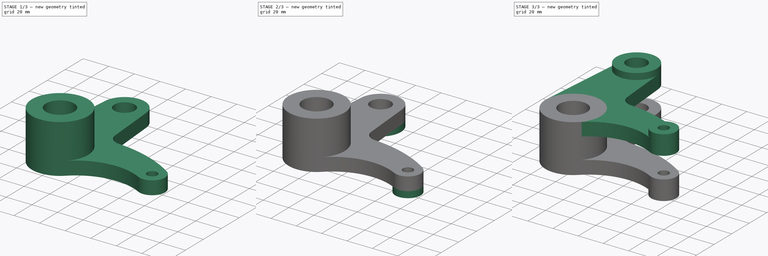
[diagram: build sequence overview — one tinted view per stage of 3, left to right]
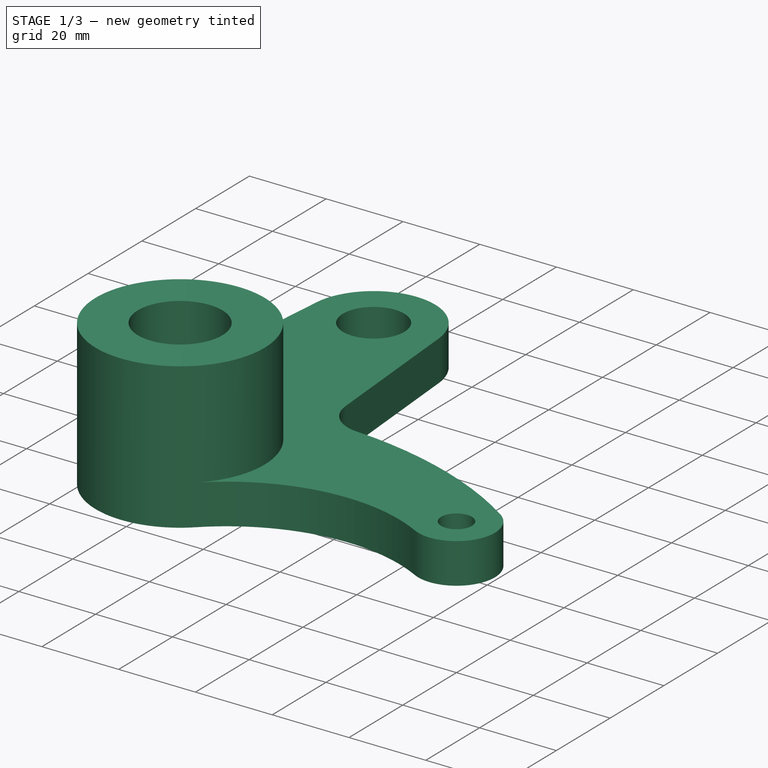
[diagram: stage 1 of 3 — iso view after this stage's code; geometry added in this stage tinted green]
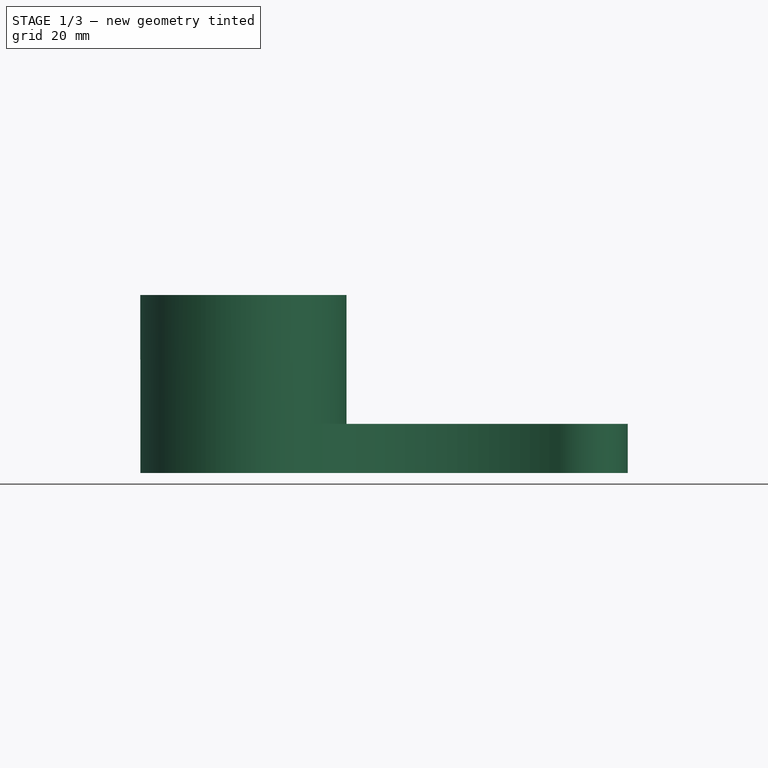
[diagram: stage 1 of 3 — front view after this stage's code; geometry added in this stage tinted green]
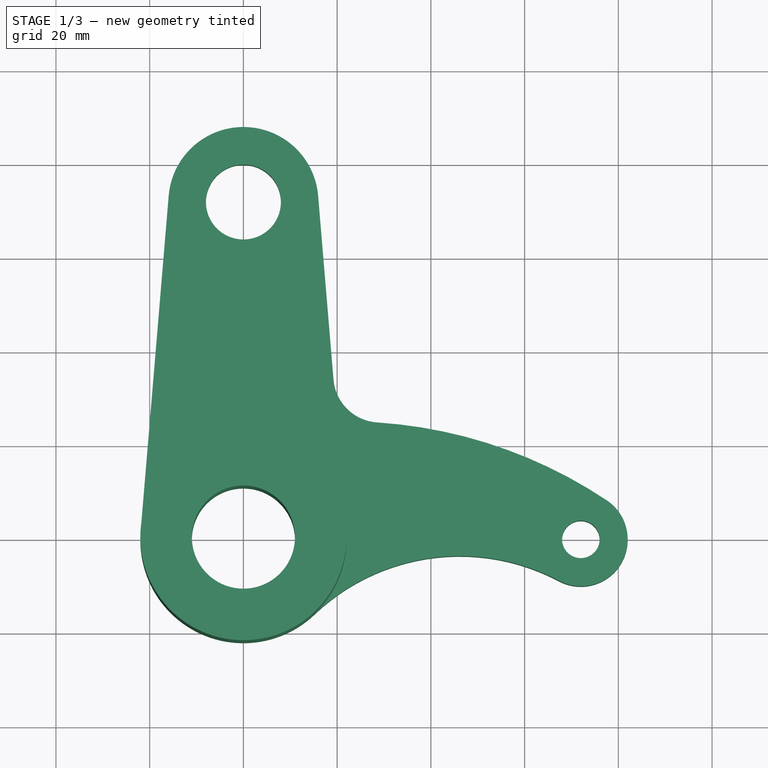
[diagram: stage 1 of 3 — top view after this stage's code; geometry added in this stage tinted green]
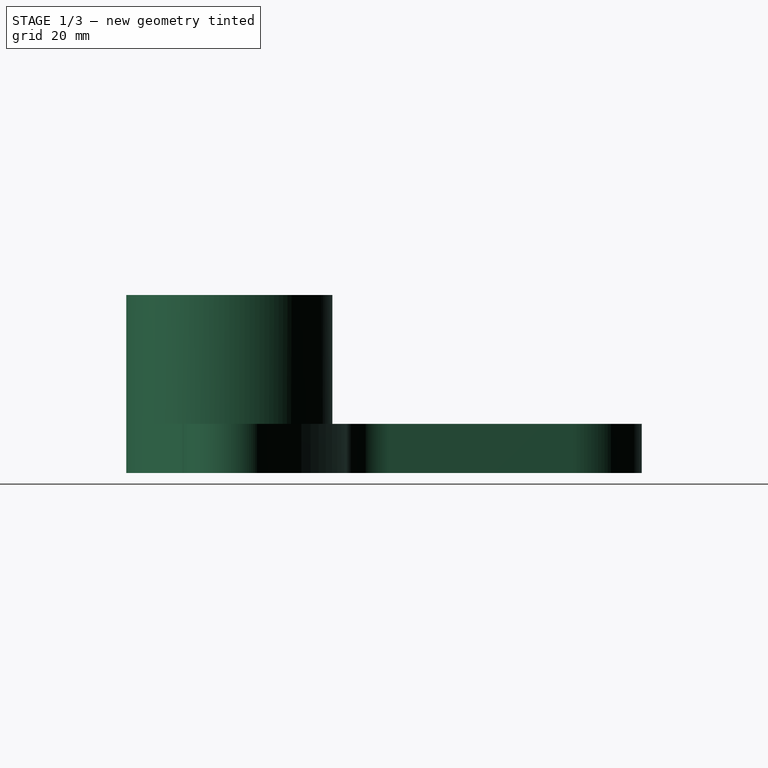
[diagram: stage 1 of 3 — right view after this stage's code; geometry added in this stage tinted green]
FCSTD DOCUMENT  (FreeCAD 0.18R4 (GitTag))
Label: pr2
License: All rights reserved
LicenseURL: http://en.wikipedia.org/wiki/All_rights_reserved
objects: Sketcher::SketchObject×3, PartDesign::Pad×3, PartDesign::LinearPattern×2, PartDesign::Body×1
note: 12 computed .brp shape members not serialized (recipe doc carries the construction recipe); baked Part::Feature solids carry a one-line shape summary decoded from their .brp

FEATURE [Sketcher::SketchObject] Sketch
  MapMode = 5
  Support = -> [XY_Plane]
  sketch-geometry (11):
    g0: Circle CenterX=0 CenterY=0 CenterZ=0 NormalX=0 NormalY=0 NormalZ=1 AngleXU=0 Radius=11
    g1: Circle CenterX=72 CenterY=0 CenterZ=0 NormalX=0 NormalY=0 NormalZ=1 AngleXU=0 Radius=4
    g2: Circle CenterX=0 CenterY=72 CenterZ=0 NormalX=0 NormalY=0 NormalZ=1 AngleXU=0 Radius=8
    g3: ArcOfCircle CenterX=0 CenterY=0 CenterZ=0 NormalX=0 NormalY=0 NormalZ=1 AngleXU=0 Radius=22 StartAngle=3.05816 EndAngle=5.47257
    g4: ArcOfCircle CenterX=0 CenterY=72 CenterZ=0 NormalX=0 NormalY=0 NormalZ=1 AngleXU=0 Radius=16 StartAngle=0.0834124 EndAngle=3.05816
    g5: ArcOfCircle CenterX=46.1667 CenterY=-48.5555 CenterZ=0 NormalX=0 NormalY=0 NormalZ=1 AngleXU=0 Radius=45 StartAngle=1.08185 EndAngle=2.33098
    g6: LineSegment StartX=-15.9443 StartY=73.3333 StartZ=0 EndX=-21.9235 EndY=1.83333 EndZ=0
    g7: LineSegment StartX=15.9444 StartY=73.3331 StartZ=0 EndX=19.2248 EndY=34.0968 EndZ=0
    g8: ArcOfCircle CenterX=72 CenterY=0 CenterZ=0 NormalX=0 NormalY=0 NormalZ=1 AngleXU=0 Radius=10 StartAngle=4.22344 EndAngle=7.26499
    g9: ArcOfCircle CenterX=29.19 CenterY=34.93 CenterZ=0 NormalX=0 NormalY=0 NormalZ=1 AngleXU=0 Radius=10 StartAngle=3.22501 EndAngle=4.647
    g10: ArcOfCircle CenterX=22.0027 CenterY=-74.8349 CenterZ=0 NormalX=0 NormalY=0 NormalZ=1 AngleXU=0 Radius=100 StartAngle=0.981802 EndAngle=1.50541
  constraints (35):
    c: Radius(g0) = 11
    c: Radius(g1) = 4
    c: Radius(g2) = 8
    c: Coincident(g0,g-1)
    c: DistanceY(g0,g2) = 72
    c: DistanceY(g0,g1) = 0
    c: DistanceX(g0,g1) = 72
    c: DistanceX(g0,g2) = 0
    c: Coincident(g4,g2)
    c: Coincident(g3,g0)
    c: Radius(g3) = 22
    c: Radius(g4) = 16
    c: Coincident(g6,g4)
    c: Coincident(g6,g3)
    c: Tangent(g4,g6)
    c: Tangent(g3,g6)
    c: Coincident(g7,g4)
    c: Coincident(g5,g3)
    c: Tangent(g5,g3)
    c: Tangent(g4,g7)
    c: Coincident(g8,g1)
    c: Coincident(g8,g5)
    c: Tangent(g8,g5)
    c: Coincident(g9,g7)
    c: Tangent(g7,g9)
    c: Radius(g5) = 45
    c: Radius(g8) = 10
    c: Coincident(g8,g10)
    c: Coincident(g10,g9)
    c: Tangent(g8,g10)
    c: Tangent(g10,g9)
    c: Radius(g10) = 100
    c: Radius(g9) = 10
    c: DistanceX(g0,g9) = 29.19
    c: DistanceY(g0,g9) = 34.93
FEATURE [PartDesign::Pad] Pad
  Length = 10.5
  Length2 = 100
  Profile = -> Sketch
  Type = 0
FEATURE [Sketcher::SketchObject] Sketch001
  MapMode = 5
  Placement = pos=(0,0,10.5) rot=(0,0,1;0rad)
  Support = -> [Pad]
  sketch-geometry (2):
    g0: Circle CenterX=0 CenterY=0 CenterZ=0 NormalX=0 NormalY=0 NormalZ=1 AngleXU=0 Radius=22
    g1: Circle CenterX=0 CenterY=0 CenterZ=0 NormalX=0 NormalY=0 NormalZ=1 AngleXU=0 Radius=11
  constraints (4):
    c: Coincident(g0,g-1)
    c: Coincident(g1,g0)
    c: Radius(g1) = 11
    c: Radius(g0) = 22
FEATURE [PartDesign::Pad] Pad001
  BaseFeature = -> Pad
  Length = 27.5
  Length2 = 100
  Offset = 1
  Profile = -> Sketch001
  Type = 0
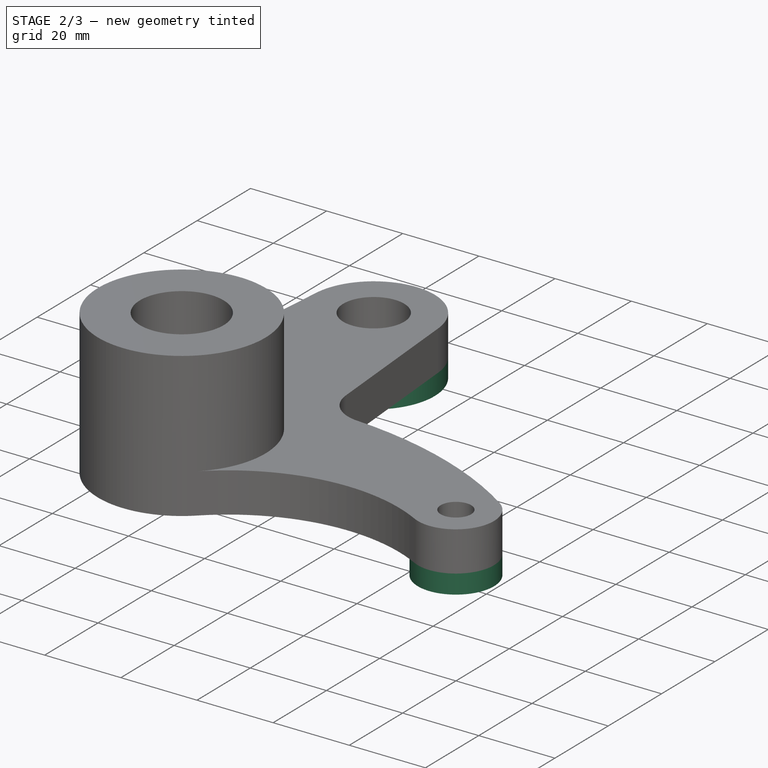
[diagram: stage 2 of 3 — iso view after this stage's code; geometry added in this stage tinted green]
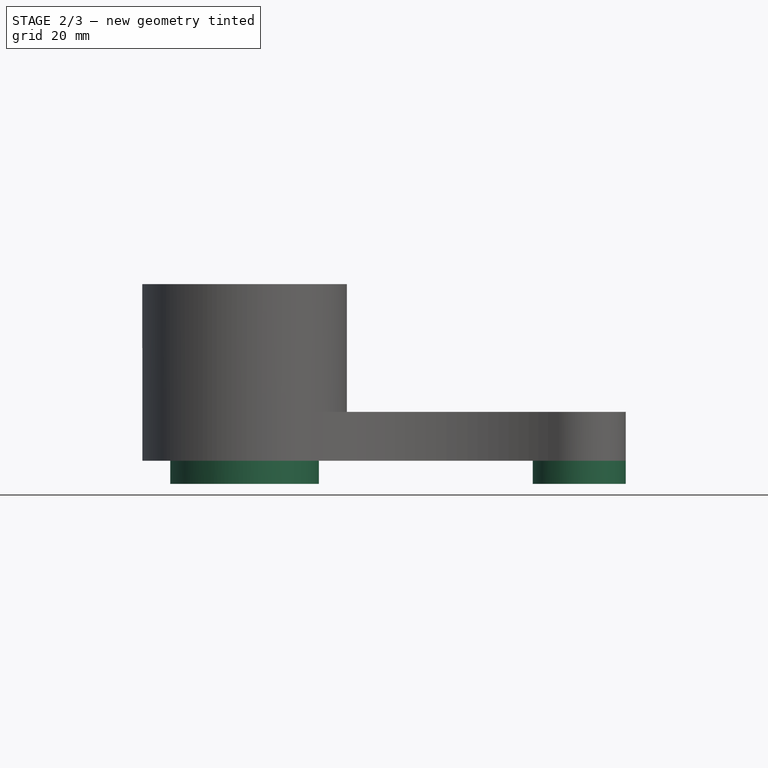
[diagram: stage 2 of 3 — front view after this stage's code; geometry added in this stage tinted green]
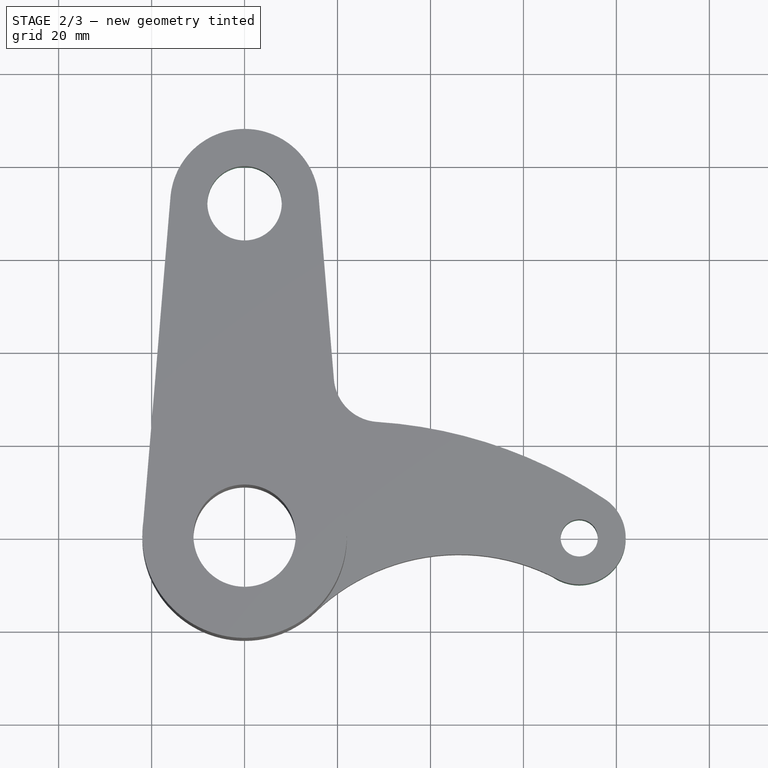
[diagram: stage 2 of 3 — top view after this stage's code; geometry added in this stage tinted green]
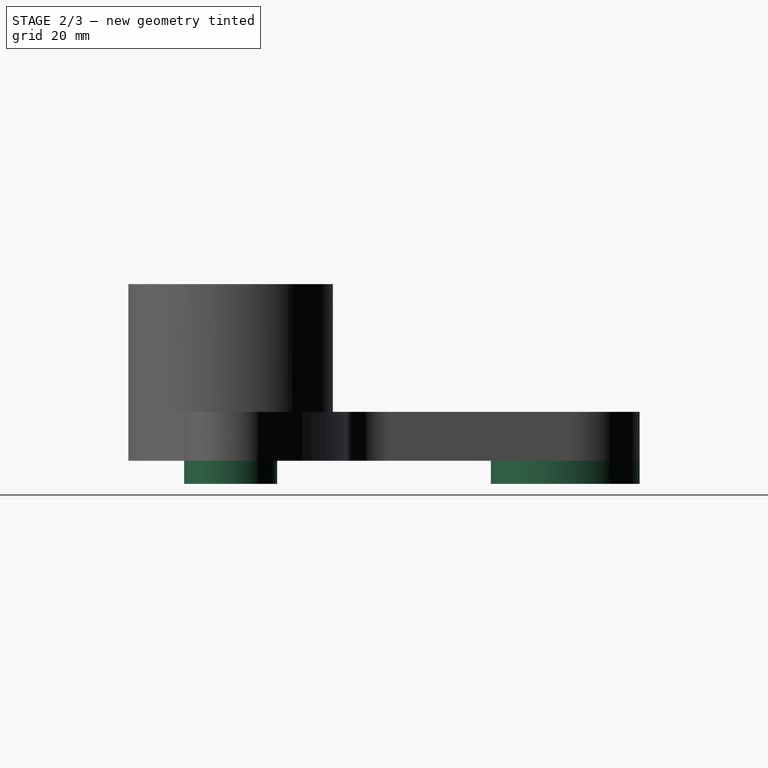
[diagram: stage 2 of 3 — right view after this stage's code; geometry added in this stage tinted green]
FEATURE [Sketcher::SketchObject] Sketch002
  ExternalGeometry = -> [Pad001]
  MapMode = 5
  Placement = pos=(0,0,0) rot=(1,0,0;3.14159rad)
  Support = -> [Pad001]
  sketch-geometry (4):
    g0: Circle CenterX=72 CenterY=0 CenterZ=0 NormalX=0 NormalY=0 NormalZ=1 AngleXU=0 Radius=4
    g1: Circle CenterX=72 CenterY=0 CenterZ=0 NormalX=0 NormalY=0 NormalZ=1 AngleXU=0 Radius=10
    g2: Circle CenterX=0 CenterY=-72 CenterZ=0 NormalX=0 NormalY=0 NormalZ=1 AngleXU=0 Radius=8
    g3: Circle CenterX=0 CenterY=-72 CenterZ=0 NormalX=0 NormalY=0 NormalZ=1 AngleXU=0 Radius=16
  constraints (8):
    c: Coincident(g1,g0)
    c: Coincident(g0,g-3)
    c: Coincident(g3,g2)
    c: Coincident(g2,g-4)
    c: Radius(g2) = 8
    c: Radius(g3) = 16
    c: Radius(g0) = 4
    c: Radius(g1) = 10
FEATURE [PartDesign::Pad] Pad002
  BaseFeature = -> Pad001
  Length = 5
  Length2 = 100
  Profile = -> Sketch002
  Type = 0
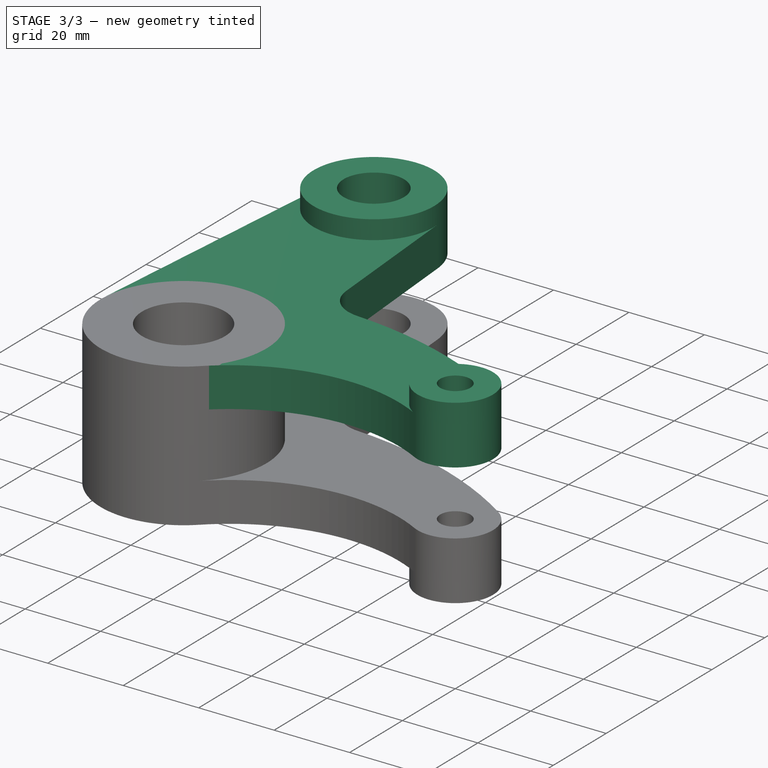
[diagram: stage 3 of 3 — iso view after this stage's code; geometry added in this stage tinted green]
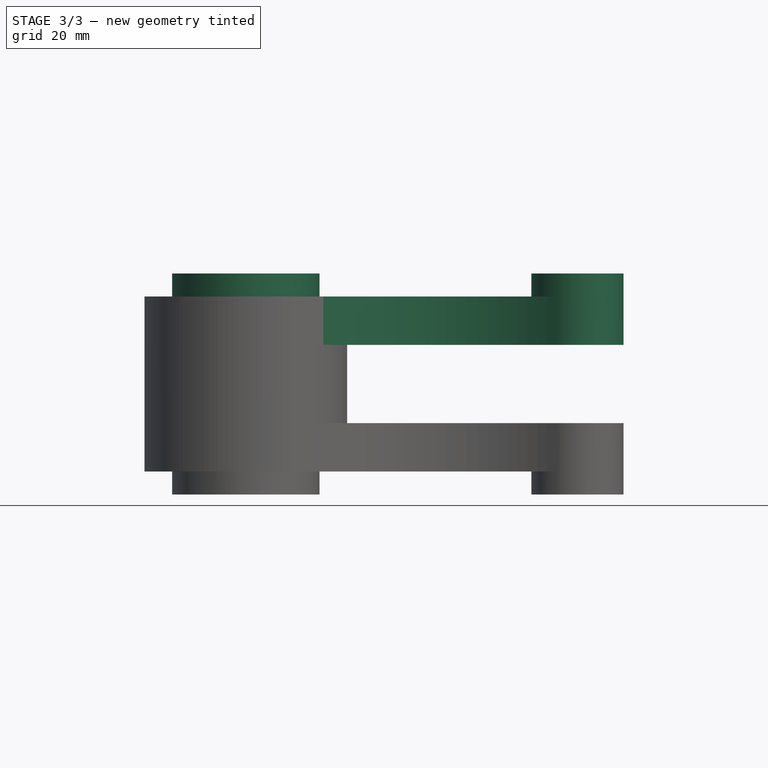
[diagram: stage 3 of 3 — front view after this stage's code; geometry added in this stage tinted green]
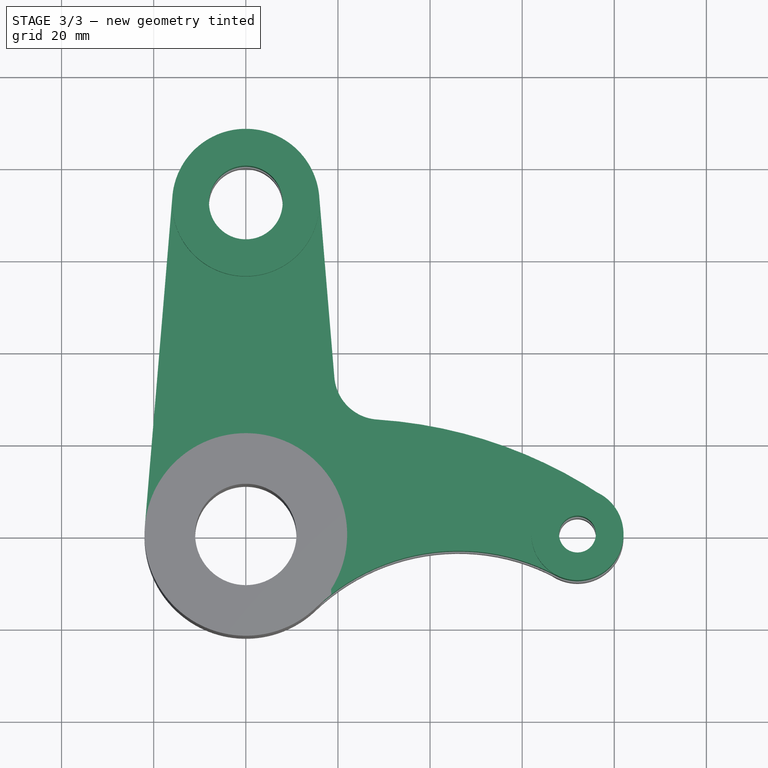
[diagram: stage 3 of 3 — top view after this stage's code; geometry added in this stage tinted green]
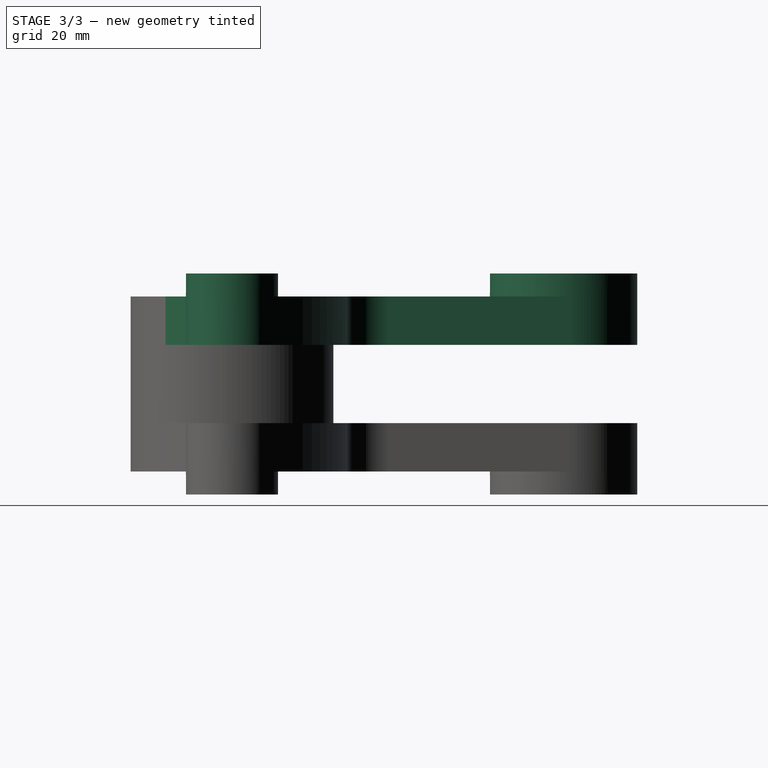
[diagram: stage 3 of 3 — right view after this stage's code; geometry added in this stage tinted green]
FEATURE [PartDesign::LinearPattern] LinearPattern
  BaseFeature = -> Pad002
  Direction = -> Z_Axis
  Length = 27.5
  Occurrences = 2
  Originals = -> [Pad]
FEATURE [PartDesign::LinearPattern] LinearPattern001
  BaseFeature = -> LinearPattern
  Direction = -> Z_Axis
  Length = 43
  Occurrences = 2
  Originals = -> [Pad002]
FEATURE [PartDesign::Body] Body
  Group = -> [Sketch,Pad,Sketch001,Pad001,Sketch002,Pad002,LinearPattern,LinearPattern001]
  Origin = -> Origin
  Tip = -> LinearPattern001
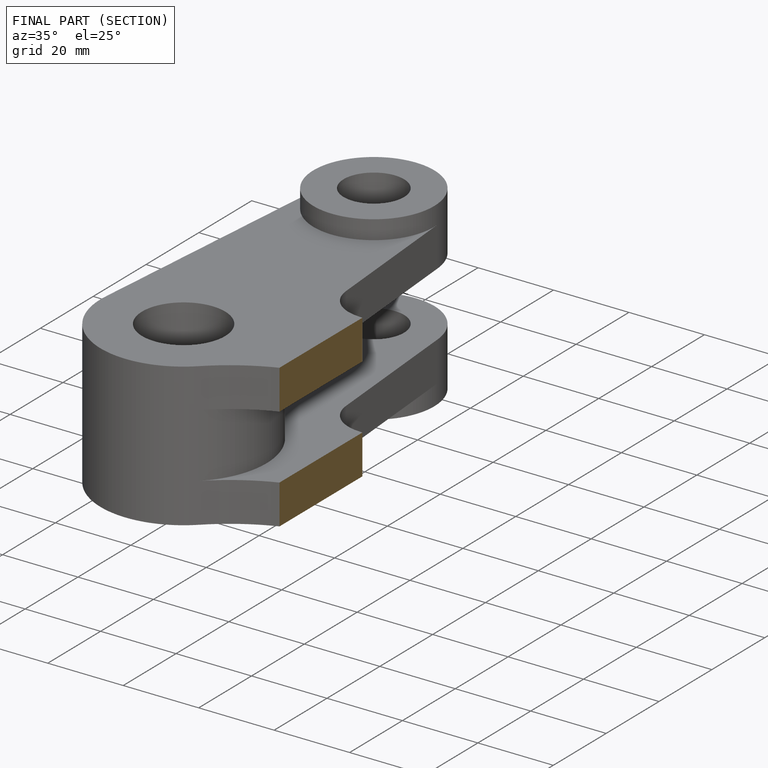
[diagram: finished part — half-section view (interior)]
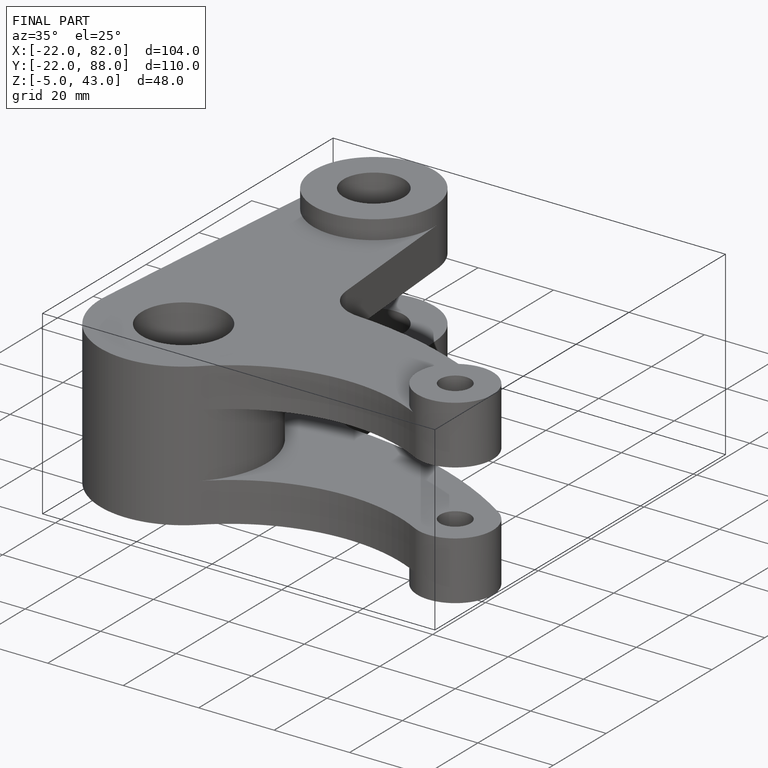
[diagram: finished part — iso view with bounding-box wireframe]
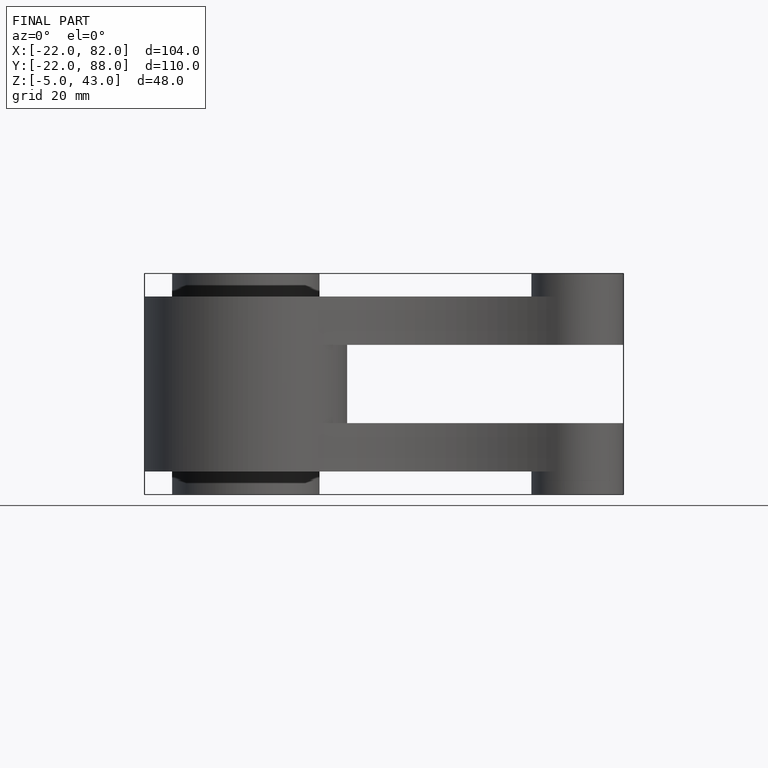
[diagram: finished part — front view with bounding-box wireframe]
